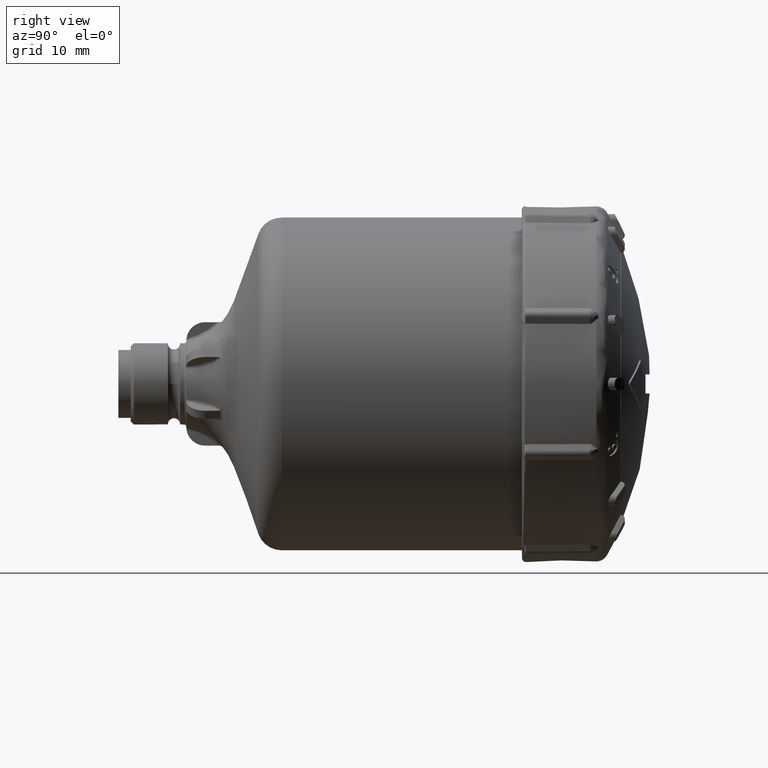
[diagram: clean part render]
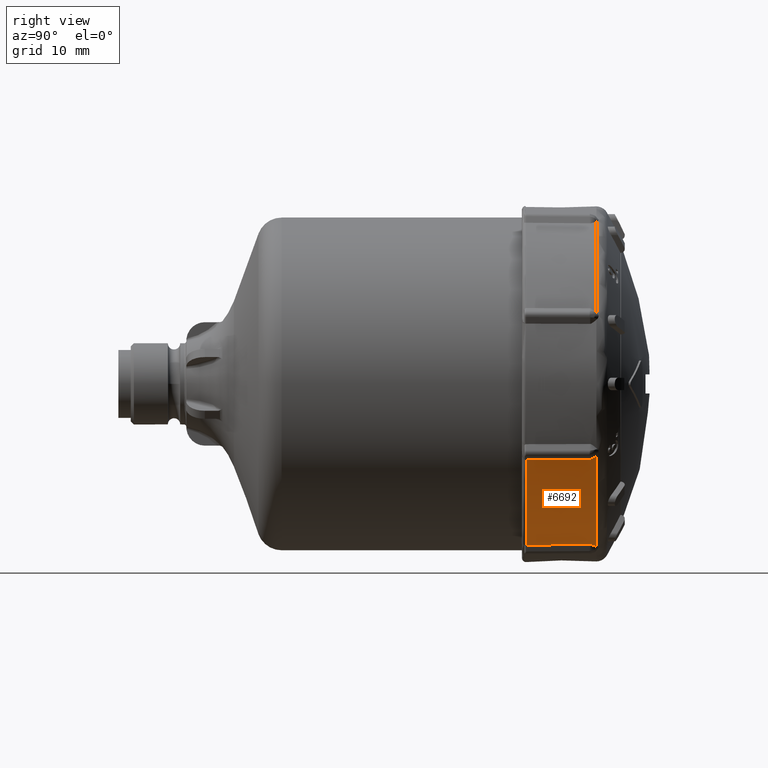
[diagram: same view with one face highlighted and labeled with its STEP entity id]
A machine part, right view. The second image highlights one B-rep face of the part: STEP entity #6692.
In plain terms, the highlighted conical surface has half-angle 0.5 deg.
Its self-contained STEP definition (entity closure, byte-faithful):
#610=LINE('',#9716,#902);
#614=LINE('',#9731,#906);
#902=VECTOR('',#7829,10.);
#906=VECTOR('',#7839,10.);
#1169=CONICAL_SURFACE('',#7153,28.8076770206804,0.00872664625997145);
#1191=B_SPLINE_CURVE_WITH_KNOTS('',3,(#9673,#9674,#9675,#9676,#9677,#9678,
#9679,#9680,#9681,#9682),.UNSPECIFIED.,.F.,.F.,(4,2,2,2,4),(0.,0.0176420603398702,
0.0358691467891642,0.0565501842513154,0.0786366672606592),.UNSPECIFIED.);
#1194=B_SPLINE_CURVE_WITH_KNOTS('',3,(#9740,#9741,#9742,#9743,#9744,#9745,
#9746,#9747,#9748,#9749),.UNSPECIFIED.,.F.,.F.,(4,2,2,2,4),(5.18018849798787E-6,
0.0521836934287979,0.0836170366196375,0.106430164740293,0.129008428081702),
 .UNSPECIFIED.);
#1196=B_SPLINE_CURVE_WITH_KNOTS('',3,(#9756,#9757,#9758,#9759),
 .UNSPECIFIED.,.F.,.F.,(4,4),(0.,0.000616557050380932),.UNSPECIFIED.);
#1636=FACE_OUTER_BOUND('',#2013,.T.);
#2013=EDGE_LOOP('',(#4819,#4820,#4821,#4822,#4823,#4824,#4825,#4826));
#2372=CIRCLE('',#7071,0.467471093241846);
#2405=CIRCLE('',#7124,28.8591919251821);
#2427=CIRCLE('',#7154,28.7600344394821);
#2738=VERTEX_POINT('',#9317);
#2743=VERTEX_POINT('',#9341);
#2793=VERTEX_POINT('',#9671);
#2794=VERTEX_POINT('',#9672);
#2795=VERTEX_POINT('',#9683);
#2799=VERTEX_POINT('',#9728);
#2800=VERTEX_POINT('',#9738);
#2801=VERTEX_POINT('',#9739);
#3485=EDGE_CURVE('',#2793,#2794,#1191,.T.);
#3486=EDGE_CURVE('',#2795,#2793,#2372,.T.);
#3492=EDGE_CURVE('',#2738,#2795,#610,.T.);
#3497=EDGE_CURVE('',#2799,#2743,#614,.T.);
#3498=EDGE_CURVE('',#2800,#2801,#1194,.T.);
#3501=EDGE_CURVE('',#2801,#2799,#1196,.T.);
#3596=EDGE_CURVE('',#2738,#2743,#2405,.T.);
#3625=EDGE_CURVE('',#2800,#2794,#2427,.T.);
#4819=ORIENTED_EDGE('',*,*,#3492,.T.);
#4820=ORIENTED_EDGE('',*,*,#3486,.T.);
#4821=ORIENTED_EDGE('',*,*,#3485,.T.);
#4822=ORIENTED_EDGE('',*,*,#3625,.F.);
#4823=ORIENTED_EDGE('',*,*,#3498,.T.);
#4824=ORIENTED_EDGE('',*,*,#3501,.T.);
#4825=ORIENTED_EDGE('',*,*,#3497,.T.);
#4826=ORIENTED_EDGE('',*,*,#3596,.F.);
#6692=ADVANCED_FACE('',(#1636),#1169,.T.);
#7071=AXIS2_PLACEMENT_3D('',#9684,#7820,#7821);
#7124=AXIS2_PLACEMENT_3D('',#10295,#7965,#7966);
#7153=AXIS2_PLACEMENT_3D('',#10394,#8025,#8026);
#7154=AXIS2_PLACEMENT_3D('',#10395,#8027,#8028);
#7820=DIRECTION('center_axis',(0.923879532511287,3.20438847010969E-15,0.38268343236509));
#7821=DIRECTION('ref_axis',(0.382616748355846,0.0186675403560572,-0.923718543071781));
#7829=DIRECTION('',(-0.00333387896686937,0.999961832319102,0.00807583779295634));
#7839=DIRECTION('',(0.00807583779295635,-0.999961832319102,-0.00333387896686978));
#7965=DIRECTION('center_axis',(3.6814030682041E-17,-1.,-2.31725584917116E-17));
#7966=DIRECTION('ref_axis',(-0.502332310881175,-3.85296009966207E-17,0.864674649475037));
#8025=DIRECTION('center_axis',(3.6814030682041E-17,-1.,-2.31725584917116E-17));
#8026=DIRECTION('ref_axis',(-1.,-3.67702306362367E-17,-1.11022302462516E-16));
#8027=DIRECTION('center_axis',(-3.6814030682041E-17,1.,2.31725584917116E-17));
#8028=DIRECTION('ref_axis',(1.,3.6814030682041E-17,1.11022302462516E-16));
#9317=CARTESIAN_POINT('',(12.297878736001,-30.0923988425324,-26.1077600948751));
#9341=CARTESIAN_POINT('',(26.1077600948751,-30.0923988425324,-12.2978787360009));
#9671=CARTESIAN_POINT('',(12.2634122184995,-19.7836166512328,-26.0245505607591));
#9672=CARTESIAN_POINT('',(11.6180080812043,-18.7300764011079,-26.3089617656279));
#9673=CARTESIAN_POINT('Ctrl Pts',(12.2634122184919,-19.783616650608,-26.0245505607407));
#9674=CARTESIAN_POINT('Ctrl Pts',(12.2619228184084,-19.7248288011547,-26.0246852620421));
#9675=CARTESIAN_POINT('Ctrl Pts',(12.2499391929339,-19.6659756339904,-26.0297722199471));
#9676=CARTESIAN_POINT('Ctrl Pts',(12.2039748662288,-19.5384938477093,-26.0501263286882));
#9677=CARTESIAN_POINT('Ctrl Pts',(12.1686297624689,-19.4678528402256,-26.0660205844372));
#9678=CARTESIAN_POINT('Ctrl Pts',(12.0616827414828,-19.293871818656,-26.1140250615749));
#9679=CARTESIAN_POINT('Ctrl Pts',(11.9894066934326,-19.1930970187857,-26.1464085550464));
#9680=CARTESIAN_POINT('Ctrl Pts',(11.8146882525999,-18.9665158950148,-26.2236752748126));
#9681=CARTESIAN_POINT('Ctrl Pts',(11.7120022478052,-18.8417285722775,-26.2685191980184));
#9682=CARTESIAN_POINT('Ctrl Pts',(11.6180080812043,-18.7300764011079,-26.3089617656279));
#9683=CARTESIAN_POINT('',(12.2634813087685,-19.789780877034,-26.0246715797093));
#9684=CARTESIAN_POINT('Origin',(12.0846095578327,-19.7985074125324,-25.5928827523889));
#9716=CARTESIAN_POINT('',(12.2807042398208,-24.9410898597832,-26.0661573712296));
#9728=CARTESIAN_POINT('',(26.024554647584,-19.789780877034,-12.2635297436407));
#9731=CARTESIAN_POINT('',(26.0661573712296,-24.9410898597832,-12.2807042398208));
#9738=CARTESIAN_POINT('',(26.3089617656279,-18.7300764011079,-11.6180080812042));
#9739=CARTESIAN_POINT('',(26.0245505607407,-19.7836166506081,-12.2634122184919));
#9740=CARTESIAN_POINT('Ctrl Pts',(26.3089617656279,-18.7300764011079,-11.6180080812042));
#9741=CARTESIAN_POINT('Ctrl Pts',(26.2625146819415,-18.8583055923937,-11.7259575804623));
#9742=CARTESIAN_POINT('Ctrl Pts',(26.2079133097757,-19.0101441896613,-11.8506606916903));
#9743=CARTESIAN_POINT('Ctrl Pts',(26.1345963409652,-19.2304938964396,-12.0157513268717));
#9744=CARTESIAN_POINT('Ctrl Pts',(26.1038197555414,-19.3273463708139,-12.0844332100335));
#9745=CARTESIAN_POINT('Ctrl Pts',(26.061922702987,-19.4865533875648,-12.1777415092737));
#9746=CARTESIAN_POINT('Ctrl Pts',(26.0481074770963,-19.5493155769358,-12.2085012443213));
#9747=CARTESIAN_POINT('Ctrl Pts',(26.0294037776592,-19.6703029645265,-12.250807399545));
#9748=CARTESIAN_POINT('Ctrl Pts',(26.0246802714743,-19.7270068406187,-12.2619779994057));
#9749=CARTESIAN_POINT('Ctrl Pts',(26.0245505607407,-19.7836166506083,-12.2634122184919));
#9756=CARTESIAN_POINT('Ctrl Pts',(26.0245505607407,-19.7836166506083,-12.2634122184919));
#9757=CARTESIAN_POINT('Ctrl Pts',(26.0245458531819,-19.7856711761206,-12.2634642702423));
#9758=CARTESIAN_POINT('Ctrl Pts',(26.02454721244,-19.7877258684597,-12.2635034505661));
#9759=CARTESIAN_POINT('Ctrl Pts',(26.024554647584,-19.789780877034,-12.2635297436407));
#10295=CARTESIAN_POINT('Origin',(-1.11352821172896E-15,-30.0923988376835,
-3.61314058759357E-15));
#10394=CARTESIAN_POINT('Origin',(8.89603754120445E-16,-24.1893754692882,
-1.25590638406117E-15));
#10395=CARTESIAN_POINT('Origin',(6.88624950722016E-16,-18.7300764011079,
-4.65148886904796E-15));